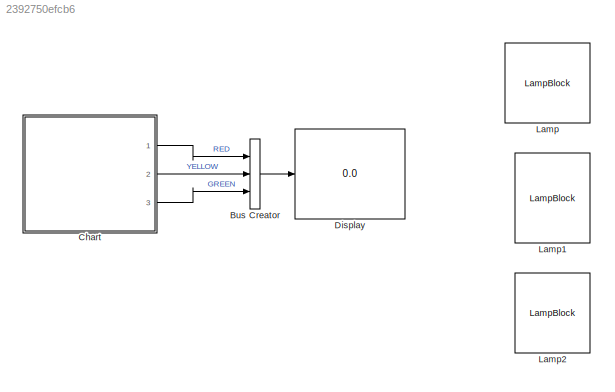
MODEL slx_2392750efcb6
KIND model
CONFIG AbsTol = auto
CONFIG EnableMultiTasking = off
CONFIG FixedStep = auto
CONFIG MaxStep = auto
CONFIG MinStep = auto
CONFIG RelTol = 1e-3
CONFIG SampleTimeConstraint = Unconstrained
CONFIG SolverName = VariableStepAuto
CONFIG StartTime = 0.0
CONFIG StopTime = inf
BLOCK [BusCreator] Bus Creator
  DisplayOption = bar
  InheritFromInputs = on
  Inputs = 3
  Ports = [3, 1]
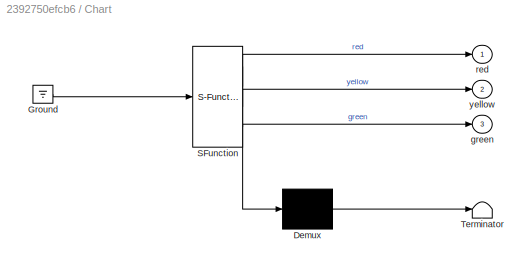
BLOCK [SubSystem] Chart
  ErrorFcn = Stateflow.Translate.translate
  PermitHierarchicalResolution = ExplicitOnly
  Ports = [0, 3]
  RequestExecContextInheritance = off
  SFBlockType = Chart
  TreatAsAtomicUnit = on
BLOCK [Demux] Chart/ Demux 
  Outputs = 1
  Ports = [1, 1]
BLOCK [Ground] Chart/ Ground 
BLOCK [S-Function] Chart/ SFunction 
  EnableBusSupport = on
  FunctionName = sf_sfun
  PortCounts = [1 4]
  Ports = [1, 4]
  SFcnIsStateOwnerBlock = off
  SFunctionDeploymentMode = off
  Tag = Stateflow S-Function 3
BLOCK [Terminator] Chart/ Terminator 
BLOCK [Outport] Chart/green
  Port = 3
BLOCK [Outport] Chart/red
BLOCK [Outport] Chart/yellow
  Port = 2
BLOCK [Display] Display
  Decimation = 1
  Ports = [1]
BLOCK [LampBlock] Lamp
BLOCK [LampBlock] Lamp1
BLOCK [LampBlock] Lamp2
LINE Bus Creator:1 -> Display:1
LINE Chart:1 -> Bus Creator:1
LINE Chart:2 -> Bus Creator:2
LINE Chart:3 -> Bus Creator:3
CHART Chart states=3 transitions=5
  STATE_LABEL 'PrepareToStop\nduring:\nred=0;\nyellow=1;\ngreen=0;'
  STATE_LABEL 'Go\nduring:\nred=0;\nyellow=0;\ngreen=1;'
  STATE_LABEL 'Stop\nduring:\nred=1;\nyellow=0;\ngreen=0;'
CHART  states=0 transitions=0
